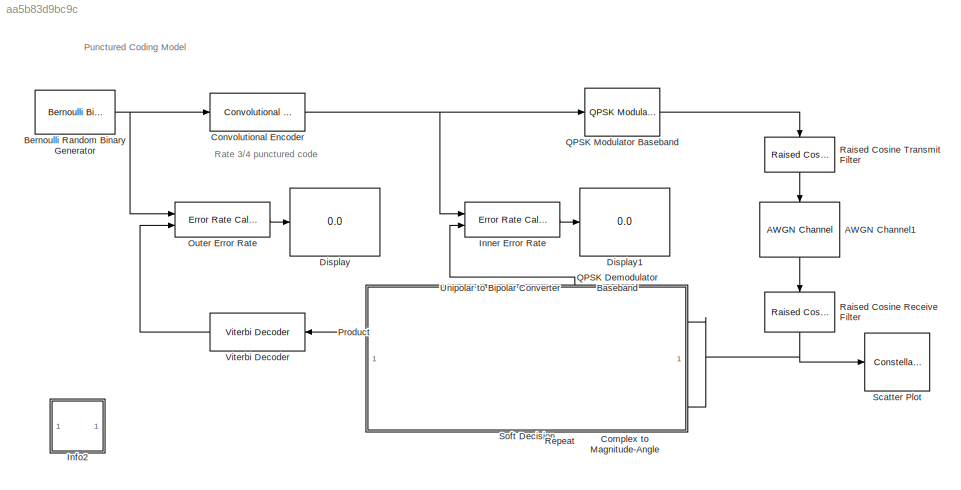
MODEL slx_aa5b83d9bc9c
KIND model
BLOCK [Reference]  Unipolar to Bipolar Converter  REF=commutil2/Unipolar to
Bipolar
Converter
  M = 2
  Ports = [1, 1]
  SourceBlock = commutil2/Unipolar to\nBipolar\nConverter
  SourceType = Unipolar to Bipolar Converter
  dataType = Inherit via internal rule
  polarity = Negative
BLOCK [Reference] AWGN Channel1  REF=commchan3/AWGN
Channel
  EbNodB = 10
  EsNodB = 7
  InputProcessing = Columns as channels (frame based)
  Ports = [1, 1]
  Ps = 1/8
  SNRdB = 10
  SourceBlock = commchan3/AWGN\nChannel
  SourceType = AWGN Channel
  Tsym = 3/2*5.5e-5
  UserDataPersistent = on
  bitsPerSym = 1
  noiseMode = Signal to noise ratio  (Es/No)
  seed = 123456
  variance = 1
BLOCK [Reference] Bernoulli Random Binary Generator  REF=commrandsrc2/Bernoulli Binary
Generator
  P = 0.5
  Ports = [0, 1]
  SourceBlock = commrandsrc2/Bernoulli Binary\nGenerator
  SourceType = Bernoulli Binary Generator
  Ts = 5.5e-5
  frameBased = on
  orient = off
  outDataType = double
  sampPerFrame = 3
  seed = 101
BLOCK [ComplexToMagnitudeAngle] Complex to Magnitude-Angle
  Output = Magnitude
  Ports = [1, 1]
BLOCK [Reference] Convolutional Encoder  REF=commcnvcod2/Convolutional
Encoder
  DelayedResetAction = off
  Ports = [1, 1]
  SourceBlock = commcnvcod2/Convolutional\nEncoder
  SourceType = Convolutional Encoder
  hasFinStPort = off
  hasIniStPort = off
  opMode = Continuous
  punctureVector = [1 1 0 1 1 0].'
  reset = Unused parameter value
  trellis = poly2trellis(7, [171 133])
  usePuncVector = on
BLOCK [Display] Display
  Decimation = 1
  Ports = [1]
BLOCK [Display] Display1
  Decimation = 1
  Ports = [1]
BLOCK [SubSystem] Info2
  AncestorBlock = commblksprivate/Info
  OpenFcn = helpview([docroot '/toolbox/comm/comm.map'], 'doc_punct');
  Ports = []
  RequestExecContextInheritance = off
BLOCK [Reference] Inner Error Rate  REF=commsink2/Error Rate
Calculation
  N = (2 + 3 + 3) * 2  % (Initial frame delay + Tx filter delay + Rx filter delay) * (2 bits per QPSK symbol)
  PMode = Port
  Ports = [2, 1]
  RsMode2 = off
  SourceBlock = commsink2/Error Rate\nCalculation
  SourceType = Error Rate Calculation
  WsName = ErrorVec
  cp_mode = Entire frame
  maxBits = 1e6
  numErr = 300
  st_delay = 0
  stop = off
  subframe = []
BLOCK [Reference] Outer Error Rate  REF=commsink2/Error Rate
Calculation
  N = (3/2+3/2+1)*3+96
  PMode = Port
  Ports = [2, 1]
  RsMode2 = off
  SourceBlock = commsink2/Error Rate\nCalculation
  SourceType = Error Rate Calculation
  WsName = ErrorVec
  cp_mode = Entire frame
  maxBits = 1e6
  numErr = 50
  st_delay = 0
  stop = on
  subframe = []
BLOCK [Product] Product
  Ports = [2, 1]
  RndMeth = Floor
BLOCK [Reference] QPSK Demodulator Baseband  REF=commdigbbndpm3/QPSK
Demodulator
Baseband
  Dec = Gray
  DecType = Hard decision
  OutType = Bit
  Ph = pi/4
  Ports = [1, 1]
  SourceBlock = commdigbbndpm3/QPSK\nDemodulator\nBaseband
  SourceType = QPSK Demodulator Baseband
  VarSource = Dialog
  Variance = 1
  derotateFactorDTMode = Same word length as input
  derotateFactorWordLen = 16
  outDtype1 = double
  outDtype2 = double
BLOCK [Reference] QPSK Modulator Baseband  REF=commdigbbndpm3/QPSK
Modulator
Baseband
  Enc = Gray
  InType = Bit
  Ph = pi/4
  Ports = [1, 1]
  SourceBlock = commdigbbndpm3/QPSK\nModulator\nBaseband
  SourceType = QPSK Modulator Baseband
  outDtype = double
  outFracLen = 15
  outFracLenMode = Best precision
  outUDDataType = sfix(16)
  outWordLen = 16
BLOCK [Reference] Raised Cosine Receive Filter  REF=commfilt2/Raised Cosine
Receive Filter
  D = (6)/2
  InputProcessing = Columns as channels (frame based)
  LockScale = off
  N = 8
  Ports = [1, 1]
  R = 0.5
  SourceBlock = commfilt2/Raised Cosine\nReceive Filter
  SourceType = Raised Cosine Receive Filter
  UserDataPersistent = on
  accumFracLength = 30
  accumMode = Same as product output
  accumWordLength = 32
  checkCoeff = off
  checkGain = Normalized
  coeffFracLength = 15
  coeffMode = Same word length as input
  coeffWordLength = 16
  currentFiltSpan = 6
  downFactor = 8
  downOffset = 0
  filtSpan = 6
  filtType = Square root
  filterGain = 1
  framing = Allow multirate processing
  launchFVT = off
  outputFracLength = 15
  outputMode = Same as accumulator
  outputWordLength = 16
  overflowMode = off
  prodOutputFracLength = 30
  prodOutputMode = Same as input
  prodOutputWordLength = 32
  rateMode = Downsampling
  roundingMode = Floor
  sampMode = Mute
  saveAsFlag = 0
  variableName = rcRxFilt
BLOCK [Reference] Raised Cosine Transmit Filter  REF=commfilt2/Raised Cosine
Transmit Filter
  D = (6)/2
  InputProcessing = Columns as channels (frame based)
  LockScale = off
  N = 8
  Ports = [1, 1]
  R = 0.5
  SourceBlock = commfilt2/Raised Cosine\nTransmit Filter
  SourceType = Raised Cosine Transmit Filter
  UserDataPersistent = on
  accumFracLength = 30
  accumMode = Inherit via internal rule
  accumWordLength = 32
  checkCoeff = off
  checkGain = Normalized
  coeffFracLength = 15
  coeffMode = Same word length as input
  coeffWordLength = 16
  currentFiltSpan = 6
  filtSpan = 6
  filtType = Square root
  filterGain = 1
  framing = Allow multirate processing
  launchFVT = off
  outputFracLength = 15
  outputMode = Same as accumulator
  outputWordLength = 16
  overflowMode = off
  prodOutputFracLength = 30
  prodOutputMode = Inherit via internal rule
  prodOutputWordLength = 32
  roundingMode = Floor
  sampMode = Mute
  saveAsFlag = 0
  variableName = rcTxFilt
BLOCK [Reference] Repeat  REF=dspsigops/Repeat
  InputProcessing = Inherited (this choice will be removed - see release notes)
  N = 2
  Ports = [1, 1]
  RateOptions = Enforce single-rate processing
  SourceBlock = dspsigops/Repeat
  SourceType = Repeat
  UserDataPersistent = on
  ic = 0
  mode = Unused parameter value
BLOCK [ConstellationDiagram] Scatter Plot
  Ports = [1]
  Tag = ScatterPlot
BLOCK [SubSystem] Soft Decision
  Ports = []
  RequestExecContextInheritance = off
BLOCK [Reference] Viterbi Decoder  REF=commcnvcod2/Viterbi Decoder
  Ports = [1, 1]
  SourceBlock = commcnvcod2/Viterbi Decoder
  SourceType = Viterbi Decoder
  dectype = Unquantized
  delayedResetAction = off
  erasures = off
  isPunctured = on
  nsdecb = 4
  opmode = Continuous
  outDataType = double
  punctureVector = [1 1 0 1 1 0].'
  reset = off
  runSigValErrCheck = off
  smWordLength = 16
  tbdepth = 96
  trellis = poly2trellis(7, [171 133])
ANNOTATION (root): Punctured Coding Model
ANNOTATION (root): Rate 3/4 punctured code
LINE  Unipolar to Bipolar Converter:1 -> Product:1
LINE AWGN Channel1:1 -> Raised Cosine Receive Filter:1
NET Bernoulli Random Binary Generator:1 -> Convolutional Encoder:1, Outer Error Rate:1
LINE Complex to Magnitude-Angle:1 -> Repeat:1
NET Convolutional Encoder:1 -> Inner Error Rate:1, QPSK Modulator Baseband:1
LINE Inner Error Rate:1 -> Display1:1
LINE Outer Error Rate:1 -> Display:1
LINE Product:1 -> Viterbi Decoder:1
NET QPSK Demodulator Baseband:1 ->  Unipolar to Bipolar Converter:1, Inner Error Rate:2
LINE QPSK Modulator Baseband:1 -> Raised Cosine Transmit Filter:1
NET Raised Cosine Receive Filter:1 -> Complex to Magnitude-Angle:1, QPSK Demodulator Baseband:1, Scatter Plot:1
LINE Raised Cosine Transmit Filter:1 -> AWGN Channel1:1
LINE Repeat:1 -> Product:2
LINE Viterbi Decoder:1 -> Outer Error Rate:2
note: NET lines group one-source signal fan-out (src -> all destinations, sorted); 1:1 wires keep LINE
